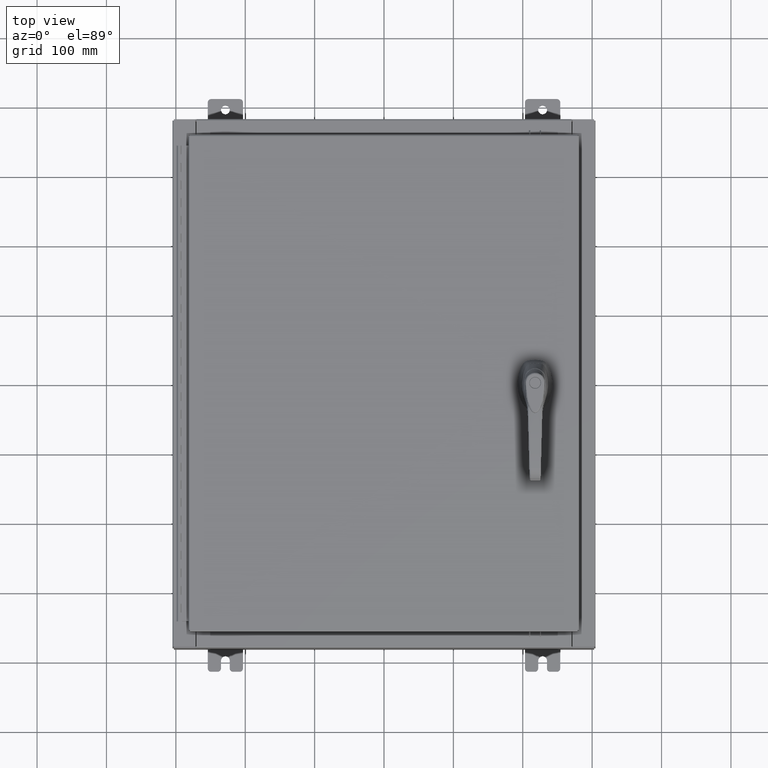
[diagram: clean part render]
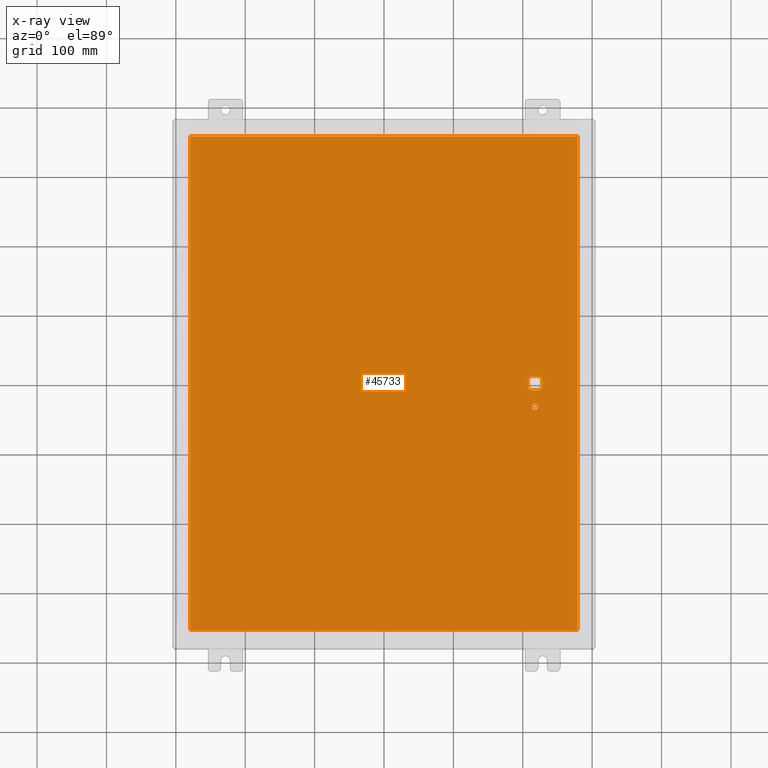
[diagram: x-ray — body ghosted, one internal face saturated and labeled with its STEP entity id]
A machine part, top view, then the same camera in x-ray: the body is ghosted and one INTERNAL B-rep face — a face not visible from any outside direction — is saturated and labeled: STEP entity #45733.
In plain terms, the highlighted planar face has unit normal (0, 0, -1).
Its self-contained STEP definition (entity closure, byte-faithful):
#418 = CIRCLE ( 'NONE', #48496, 0.1715000000000011500 ) ;
#619 = FACE_OUTER_BOUND ( 'NONE', #101219, .T. ) ;
#1437 = VERTEX_POINT ( 'NONE', #24174 ) ;
#3320 = VERTEX_POINT ( 'NONE', #36522 ) ;
#4849 = CARTESIAN_POINT ( 'NONE',  ( 8.577999999999999400, -1.338000000000000100, -0.07470000000000003000 ) ) ;
#5006 = PLANE ( 'NONE',  #17171 ) ;
#7599 = EDGE_CURVE ( 'NONE', #48022, #16684, #62282, .T. ) ;
#9551 = LINE ( 'NONE', #117107, #79724 ) ;
#9555 = VERTEX_POINT ( 'NONE', #64188 ) ;
#10792 = CARTESIAN_POINT ( 'NONE',  ( 8.749500000000001200, -1.338000000000000100, -0.07470000000000003000 ) ) ;
#12554 = ORIENTED_EDGE ( 'NONE', *, *, #103923, .T. ) ;
#13129 = DIRECTION ( 'NONE',  ( -1.000000000000000000, -0.0000000000000000000, -0.0000000000000000000 ) ) ;
#13588 = LINE ( 'NONE', #89162, #19334 ) ;
#14033 = DIRECTION ( 'NONE',  ( -1.000000000000000000, 0.0000000000000000000, 0.0000000000000000000 ) ) ;
#14235 = VECTOR ( 'NONE', #18232, 39.37007874015748100 ) ;
#15859 = VECTOR ( 'NONE', #47117, 39.37007874015748100 ) ;
#16310 = VERTEX_POINT ( 'NONE', #41337 ) ;
#16661 = DIRECTION ( 'NONE',  ( 0.0000000000000000000, -1.000000000000000000, 0.0000000000000000000 ) ) ;
#16684 = VERTEX_POINT ( 'NONE', #47792 ) ;
#16730 = CARTESIAN_POINT ( 'NONE',  ( 8.577999999999999400, 0.0000000000000000000, -0.07470000000000003000 ) ) ;
#16855 = VERTEX_POINT ( 'NONE', #58507 ) ;
#16997 = VECTOR ( 'NONE', #50802, 39.37007874015748100 ) ;
#17171 = AXIS2_PLACEMENT_3D ( 'NONE', #87132, #105504, #23388 ) ;
#18232 = DIRECTION ( 'NONE',  ( 1.000000000000000000, -0.0000000000000000000, -0.0000000000000000000 ) ) ;
#18278 = AXIS2_PLACEMENT_3D ( 'NONE', #19509, #83620, #28743 ) ;
#19331 = ORIENTED_EDGE ( 'NONE', *, *, #50868, .F. ) ;
#19334 = VECTOR ( 'NONE', #34227, 39.37007874015748100 ) ;
#19509 = CARTESIAN_POINT ( 'NONE',  ( 8.577999999999999400, 0.0000000000000000000, -0.07470000000000003000 ) ) ;
#19782 = CARTESIAN_POINT ( 'NONE',  ( 8.175000000000073500, -0.2002273707563079800, -0.07470000000000003000 ) ) ;
#20570 = CARTESIAN_POINT ( 'NONE',  ( 8.577999999999999400, -1.338000000000000100, -0.07470000000000003000 ) ) ;
#21093 = VERTEX_POINT ( 'NONE', #26682 ) ;
#23388 = DIRECTION ( 'NONE',  ( -1.000000000000000000, 0.0000000000000000000, -0.0000000000000000000 ) ) ;
#24174 = CARTESIAN_POINT ( 'NONE',  ( 8.175000000000073500, 0.2002273707563080300, -0.07470000000000003000 ) ) ;
#24904 = FACE_BOUND ( 'NONE', #43683, .T. ) ;
#25962 = DIRECTION ( 'NONE',  ( -1.000000000000000000, 1.776356839400251300E-015, 0.0000000000000000000 ) ) ;
#26291 = ORIENTED_EDGE ( 'NONE', *, *, #118296, .T. ) ;
#26682 = CARTESIAN_POINT ( 'NONE',  ( -10.99030000000000000, -14.00629999999999600, -0.07470000000000000300 ) ) ;
#28743 = DIRECTION ( 'NONE',  ( -1.000000000000000000, 0.0000000000000000000, 0.0000000000000000000 ) ) ;
#29768 = DIRECTION ( 'NONE',  ( -1.000000000000000000, 0.0000000000000000000, 0.0000000000000000000 ) ) ;
#32834 = ORIENTED_EDGE ( 'NONE', *, *, #66904, .T. ) ;
#33531 = FACE_BOUND ( 'NONE', #118632, .T. ) ;
#33975 = EDGE_CURVE ( 'NONE', #79377, #9555, #13588, .T. ) ;
#34227 = DIRECTION ( 'NONE',  ( -1.000000000000000000, 0.0000000000000000000, 0.0000000000000000000 ) ) ;
#36010 = LINE ( 'NONE', #62350, #106196 ) ;
#36522 = CARTESIAN_POINT ( 'NONE',  ( 8.406499999999999400, -1.338000000000000100, -0.07470000000000003000 ) ) ;
#36641 = ORIENTED_EDGE ( 'NONE', *, *, #59778, .F. ) ;
#37259 = CIRCLE ( 'NONE', #79818, 0.1715000000000011500 ) ;
#41337 = CARTESIAN_POINT ( 'NONE',  ( 8.980999999999925300, 0.2002273707563080300, -0.07470000000000003000 ) ) ;
#42204 = VERTEX_POINT ( 'NONE', #47153 ) ;
#43683 = EDGE_LOOP ( 'NONE', ( #74281, #36641, #79362, #73592, #106585, #26291, #88985, #32834 ) ) ;
#45465 = VECTOR ( 'NONE', #13129, 39.37007874015748100 ) ;
#45733 = ADVANCED_FACE ( 'NONE', ( #33531, #619, #24904 ), #5006, .T. ) ;
#45994 = CARTESIAN_POINT ( 'NONE',  ( 8.577999999999999400, 0.0000000000000000000, -0.07470000000000003000 ) ) ;
#47117 = DIRECTION ( 'NONE',  ( 0.0000000000000000000, 1.000000000000000000, 0.0000000000000000000 ) ) ;
#47153 = CARTESIAN_POINT ( 'NONE',  ( 8.778227370756310300, -0.4029999999999252000, -0.07470000000000003000 ) ) ;
#47792 = CARTESIAN_POINT ( 'NONE',  ( 8.377772629243690300, -0.4029999999999250300, -0.07470000000000003000 ) ) ;
#48022 = VERTEX_POINT ( 'NONE', #19782 ) ;
#48496 = AXIS2_PLACEMENT_3D ( 'NONE', #20570, #84656, #29768 ) ;
#50142 = AXIS2_PLACEMENT_3D ( 'NONE', #73187, #115146, #109406 ) ;
#50606 = EDGE_CURVE ( 'NONE', #42204, #93879, #80194, .T. ) ;
#50802 = DIRECTION ( 'NONE',  ( 0.0000000000000000000, -1.000000000000000000, 0.0000000000000000000 ) ) ;
#50868 = EDGE_CURVE ( 'NONE', #21093, #70023, #84490, .T. ) ;
#51798 = VERTEX_POINT ( 'NONE', #10792 ) ;
#55165 = DIRECTION ( 'NONE',  ( -1.000000000000000000, 0.0000000000000000000, 0.0000000000000000000 ) ) ;
#56614 = EDGE_CURVE ( 'NONE', #70023, #62129, #58719, .T. ) ;
#57648 = CARTESIAN_POINT ( 'NONE',  ( 8.980999999999925300, -0.2002273707563075900, -0.07470000000000003000 ) ) ;
#58507 = CARTESIAN_POINT ( 'NONE',  ( -10.99030000000000000, 14.00629999999999800, -0.07470000000000000300 ) ) ;
#58552 = CARTESIAN_POINT ( 'NONE',  ( 10.99030000000000000, -14.00629999999999800, -0.07470000000000000300 ) ) ;
#58644 = CARTESIAN_POINT ( 'NONE',  ( 10.99030000000000000, 14.00629999999999800, -0.07470000000000019700 ) ) ;
#58719 = LINE ( 'NONE', #92878, #15859 ) ;
#59478 = EDGE_CURVE ( 'NONE', #16855, #21093, #111554, .T. ) ;
#59778 = EDGE_CURVE ( 'NONE', #16310, #93879, #118633, .T. ) ;
#62129 = VERTEX_POINT ( 'NONE', #93236 ) ;
#62282 = CIRCLE ( 'NONE', #50142, 0.4499999999999156900 ) ;
#62341 = DIRECTION ( 'NONE',  ( 2.728745808672812900E-015, -1.000000000000000000, 0.0000000000000000000 ) ) ;
#62350 = CARTESIAN_POINT ( 'NONE',  ( 0.0000000000000000000, -0.4029999999999252000, -0.07470000000000003000 ) ) ;
#64188 = CARTESIAN_POINT ( 'NONE',  ( 8.377772629243690300, 0.4029999999999252000, -0.07470000000000003000 ) ) ;
#66904 = EDGE_CURVE ( 'NONE', #16684, #42204, #36010, .T. ) ;
#68794 = DIRECTION ( 'NONE',  ( -0.0000000000000000000, -0.0000000000000000000, 1.000000000000000000 ) ) ;
#69891 = VECTOR ( 'NONE', #62341, 39.37007874015748100 ) ;
#70023 = VERTEX_POINT ( 'NONE', #58552 ) ;
#73002 = CARTESIAN_POINT ( 'NONE',  ( -10.99029999999999600, -14.00629999999999800, -0.07470000000000019700 ) ) ;
#73187 = CARTESIAN_POINT ( 'NONE',  ( 8.577999999999999400, 0.0000000000000000000, -0.07470000000000003000 ) ) ;
#73592 = ORIENTED_EDGE ( 'NONE', *, *, #33975, .T. ) ;
#74281 = ORIENTED_EDGE ( 'NONE', *, *, #50606, .T. ) ;
#79362 = ORIENTED_EDGE ( 'NONE', *, *, #94325, .T. ) ;
#79377 = VERTEX_POINT ( 'NONE', #103237 ) ;
#79724 = VECTOR ( 'NONE', #16661, 39.37007874015748100 ) ;
#79818 = AXIS2_PLACEMENT_3D ( 'NONE', #4849, #68794, #14033 ) ;
#80194 = CIRCLE ( 'NONE', #104874, 0.4499999999999156900 ) ;
#80814 = DIRECTION ( 'NONE',  ( -0.0000000000000000000, -0.0000000000000000000, 1.000000000000000000 ) ) ;
#81333 = ORIENTED_EDGE ( 'NONE', *, *, #112346, .T. ) ;
#83620 = DIRECTION ( 'NONE',  ( -0.0000000000000000000, -0.0000000000000000000, 1.000000000000000000 ) ) ;
#84089 = ORIENTED_EDGE ( 'NONE', *, *, #56614, .F. ) ;
#84490 = LINE ( 'NONE', #73002, #14235 ) ;
#84656 = DIRECTION ( 'NONE',  ( -0.0000000000000000000, -0.0000000000000000000, 1.000000000000000000 ) ) ;
#87132 = CARTESIAN_POINT ( 'NONE',  ( 0.0000000000000000000, 0.0000000000000000000, -0.07470000000000000300 ) ) ;
#88985 = ORIENTED_EDGE ( 'NONE', *, *, #7599, .T. ) ;
#89162 = CARTESIAN_POINT ( 'NONE',  ( 0.0000000000000000000, 0.4029999999999252000, -0.07470000000000003000 ) ) ;
#89775 = DIRECTION ( 'NONE',  ( 1.000000000000000000, 0.0000000000000000000, 0.0000000000000000000 ) ) ;
#92878 = CARTESIAN_POINT ( 'NONE',  ( 10.99030000000000000, -14.00629999999999800, -0.07470000000000019700 ) ) ;
#92999 = EDGE_CURVE ( 'NONE', #62129, #16855, #116895, .T. ) ;
#93236 = CARTESIAN_POINT ( 'NONE',  ( 10.99030000000000000, 14.00629999999999800, -0.07470000000000000300 ) ) ;
#93879 = VERTEX_POINT ( 'NONE', #57648 ) ;
#94325 = EDGE_CURVE ( 'NONE', #16310, #79377, #115337, .T. ) ;
#95419 = ORIENTED_EDGE ( 'NONE', *, *, #92999, .F. ) ;
#96258 = CIRCLE ( 'NONE', #18278, 0.4499999999999156900 ) ;
#96630 = CARTESIAN_POINT ( 'NONE',  ( -10.99030000000000000, 14.00630000000000100, -0.07470000000000019700 ) ) ;
#98966 = CARTESIAN_POINT ( 'NONE',  ( 8.980999999999925300, 2.450686610769032800E-014, -0.07470000000000003000 ) ) ;
#99293 = EDGE_CURVE ( 'NONE', #9555, #1437, #96258, .T. ) ;
#99335 = AXIS2_PLACEMENT_3D ( 'NONE', #45994, #110066, #55165 ) ;
#101219 = EDGE_LOOP ( 'NONE', ( #84089, #19331, #109958, #95419 ) ) ;
#103237 = CARTESIAN_POINT ( 'NONE',  ( 8.778227370756310300, 0.4029999999999250300, -0.07470000000000003000 ) ) ;
#103923 = EDGE_CURVE ( 'NONE', #3320, #51798, #37259, .T. ) ;
#104874 = AXIS2_PLACEMENT_3D ( 'NONE', #16730, #80814, #25962 ) ;
#105504 = DIRECTION ( 'NONE',  ( 0.0000000000000000000, 0.0000000000000000000, -1.000000000000000000 ) ) ;
#106196 = VECTOR ( 'NONE', #89775, 39.37007874015748100 ) ;
#106585 = ORIENTED_EDGE ( 'NONE', *, *, #99293, .T. ) ;
#109406 = DIRECTION ( 'NONE',  ( -1.000000000000000000, 8.881784197001256300E-016, 0.0000000000000000000 ) ) ;
#109958 = ORIENTED_EDGE ( 'NONE', *, *, #59478, .F. ) ;
#110066 = DIRECTION ( 'NONE',  ( -0.0000000000000000000, -0.0000000000000000000, 1.000000000000000000 ) ) ;
#111554 = LINE ( 'NONE', #96630, #16997 ) ;
#112346 = EDGE_CURVE ( 'NONE', #51798, #3320, #418, .T. ) ;
#115146 = DIRECTION ( 'NONE',  ( -0.0000000000000000000, -0.0000000000000000000, 1.000000000000000000 ) ) ;
#115337 = CIRCLE ( 'NONE', #99335, 0.4499999999999156900 ) ;
#116895 = LINE ( 'NONE', #58644, #45465 ) ;
#117107 = CARTESIAN_POINT ( 'NONE',  ( 8.175000000000073500, 0.0000000000000000000, -0.07470000000000003000 ) ) ;
#118296 = EDGE_CURVE ( 'NONE', #1437, #48022, #9551, .T. ) ;
#118632 = EDGE_LOOP ( 'NONE', ( #81333, #12554 ) ) ;
#118633 = LINE ( 'NONE', #98966, #69891 ) ;